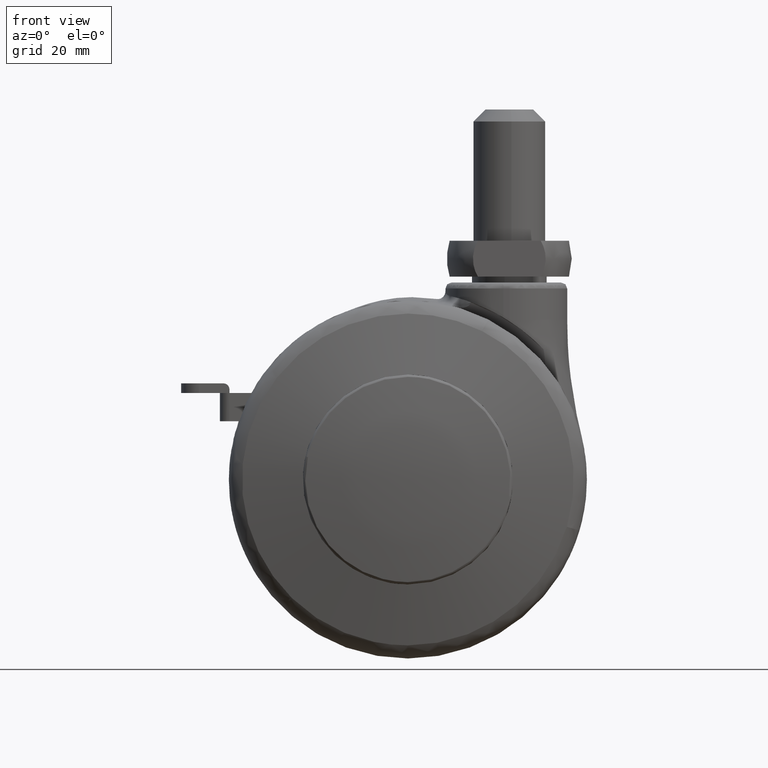
[diagram: clean part render]
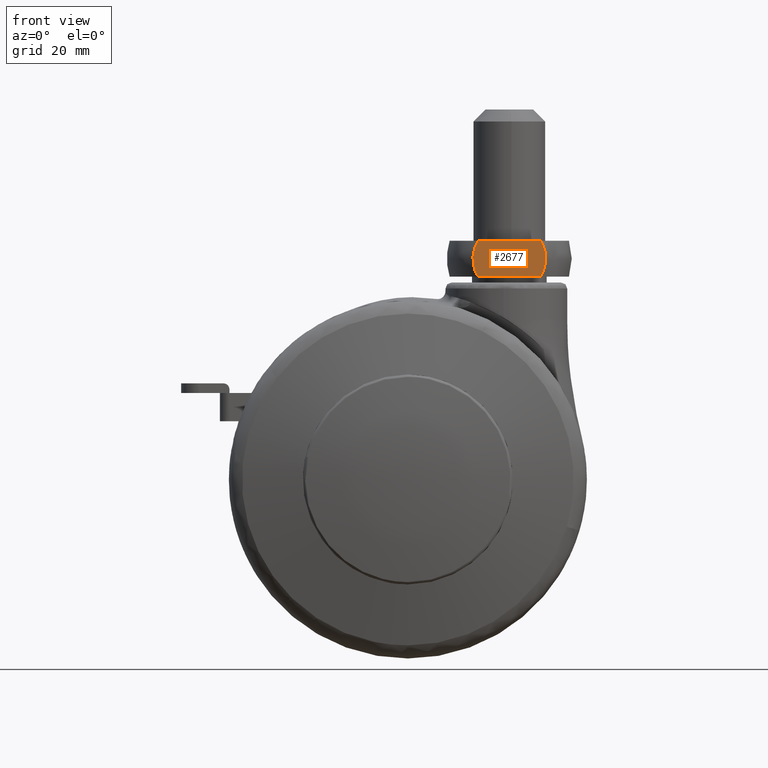
[diagram: same view with one face highlighted and labeled with its STEP entity id]
A machine part, front view. The second image highlights one B-rep face of the part: STEP entity #2677.
In plain terms, the highlighted face is a freeform B-spline surface patch.
Its self-contained STEP definition (entity closure, byte-faithful):
#2427=CARTESIAN_POINT('',(11.732173084377919,-8.500000000000000,40.0));
#2428=VERTEX_POINT('',#2427);
#2459=CARTESIAN_POINT('',(11.732173096675339,-8.500000000000000,34.0));
#2460=VERTEX_POINT('',#2459);
#2474=CARTESIAN_POINT('',(11.732173084377919,-8.500000000000000,40.0));
#2475=CARTESIAN_POINT('',(11.598142456138740,-8.500000000000000,39.775494250011100));
#2476=CARTESIAN_POINT('',(11.480420853642300,-8.500000000000002,39.544563033315512));
#2477=CARTESIAN_POINT('',(11.275192295875810,-8.500000000000000,39.067166780951112));
#2478=CARTESIAN_POINT('',(11.188102753278351,-8.499999999999998,38.820537292224827));
#2479=CARTESIAN_POINT('',(11.082213887308409,-8.500000000000000,38.440843799382492));
#2480=CARTESIAN_POINT('',(11.051054951752290,-8.499999999999996,38.312649259338457));
#2481=CARTESIAN_POINT('',(10.997259504024891,-8.500000000000000,38.052902498292298));
#2482=CARTESIAN_POINT('',(10.974864161588780,-8.499999999999996,37.922501337758113));
#2483=CARTESIAN_POINT('',(10.921072701193109,-8.499999999999998,37.530032942629852));
#2484=CARTESIAN_POINT('',(10.902983536434240,-8.499999999999998,37.266574274467693));
#2485=CARTESIAN_POINT('',(10.902867370452199,-8.500000000000000,36.735977893523760));
#2486=CARTESIAN_POINT('',(10.920836844630470,-8.499999999999996,36.473809108610951));
#2487=CARTESIAN_POINT('',(10.991313828847790,-8.500000000000000,35.955409715478091));
#2488=CARTESIAN_POINT('',(11.043826554054389,-8.499999999999995,35.699189801637509));
#2489=CARTESIAN_POINT('',(11.148776814293701,-8.500000000000002,35.319376149044217));
#2490=CARTESIAN_POINT('',(11.188137771805270,-8.499999999999998,35.193526717689132));
#2491=CARTESIAN_POINT('',(11.275838612908951,-8.500000000000002,34.943376708041178));
#2492=CARTESIAN_POINT('',(11.323797896967580,-8.499999999999998,34.820197466476259));
#2493=CARTESIAN_POINT('',(11.479116266427400,-8.499999999999996,34.457648559128252));
#2494=CARTESIAN_POINT('',(11.598092407606700,-8.499999999999998,34.224593493215053));
#2495=CARTESIAN_POINT('',(11.732173096675350,-8.499999999999998,34.0));
#2496=B_SPLINE_CURVE_WITH_KNOTS('',3,(#2474,#2475,#2476,#2477,#2478,#2479,#2480,#2481,#2482,#2483,#2484,#2485,#2486,#2487,#2488,#2489,#2490,#2491,#2492,#2493,#2494,#2495),.UNSPECIFIED.,.F.,.U.,(4,2,2,2,2,2,2,2,2,2,4),(0.750403753690250,0.781250000000012,0.812500000000010,0.828125000000009,0.843750000000008,0.875000000000006,0.906250000000004,0.937500000000003,0.953125000000002,0.968750000000002,1.0),.UNSPECIFIED.);
#2497=EDGE_CURVE('',#2428,#2460,#2496,.T.);
#2628=CARTESIAN_POINT('',(10.293827733436469,-8.500000000000000,33.700300011629160));
#2629=CARTESIAN_POINT('',(23.706171832472410,-8.500000000000000,33.700300011629160));
#2630=CARTESIAN_POINT('',(10.293827733436469,-8.500000000000000,40.299700149303384));
#2631=CARTESIAN_POINT('',(23.706171832472410,-8.500000000000000,40.299700149303384));
#2632=B_SPLINE_SURFACE_WITH_KNOTS('',1,1,((#2628,#2630),(#2629,#2631)),.UNSPECIFIED.,.F.,.F.,.U.,(2,2),(2,2),(0.0,13.412344099035939),(0.0,6.599400137674216),.UNSPECIFIED.);
#2633=CARTESIAN_POINT('',(22.267826903324650,-8.500000000000000,34.0));
#2634=VERTEX_POINT('',#2633);
#2635=CARTESIAN_POINT('',(22.267826915622098,-8.500000000000000,39.999999979401053));
#2636=VERTEX_POINT('',#2635);
#2637=CARTESIAN_POINT('',(22.267826903324661,-8.499999999999996,33.999999999999993));
#2638=CARTESIAN_POINT('',(22.334983241168750,-8.500000000000000,34.112491042615503));
#2639=CARTESIAN_POINT('',(22.398567388449269,-8.499999999999996,34.227495553251870));
#2640=CARTESIAN_POINT('',(22.518411288828961,-8.499999999999998,34.462658171517752));
#2641=CARTESIAN_POINT('',(22.574777453791729,-8.499999999999995,34.583139904142627));
#2642=CARTESIAN_POINT('',(22.730261735484831,-8.499999999999995,34.947023042857779));
#2643=CARTESIAN_POINT('',(22.816694363230699,-8.499999999999996,35.194356753575683));
#2644=CARTESIAN_POINT('',(22.955909452838160,-8.499999999999995,35.698294523716029));
#2645=CARTESIAN_POINT('',(23.008693105005431,-8.499999999999995,35.954898255218893));
#2646=CARTESIAN_POINT('',(23.061879759538780,-8.499999999999995,36.346963563337987));
#2647=CARTESIAN_POINT('',(23.075271971507640,-8.499999999999996,36.479305299721339));
#2648=CARTESIAN_POINT('',(23.092890961339020,-8.499999999999996,36.742746714432641));
#2649=CARTESIAN_POINT('',(23.097189781211920,-8.499999999999996,36.874143072982463));
#2650=CARTESIAN_POINT('',(23.096837478866561,-8.499999999999995,37.267379470799582));
#2651=CARTESIAN_POINT('',(23.078994585671321,-8.499999999999998,37.528270930281671));
#2652=CARTESIAN_POINT('',(23.025877321016988,-8.499999999999995,37.917713161515522));
#2653=CARTESIAN_POINT('',(23.003765123912402,-8.499999999999998,38.047210384850210));
#2654=CARTESIAN_POINT('',(22.950560278992700,-8.499999999999995,38.305559074856468));
#2655=CARTESIAN_POINT('',(22.919325779412421,-8.499999999999995,38.434846171128960));
#2656=CARTESIAN_POINT('',(22.813286985125600,-8.499999999999993,38.816478002368143));
#2657=CARTESIAN_POINT('',(22.726099055095649,-8.499999999999995,39.063754872715407));
#2658=CARTESIAN_POINT('',(22.520443690658020,-8.499999999999995,39.542951827812232));
#2659=CARTESIAN_POINT('',(22.402176173561511,-8.499999999999995,39.774958499082473));
#2660=CARTESIAN_POINT('',(22.267826915622098,-8.500000000000000,39.999999979401053));
#2661=B_SPLINE_CURVE_WITH_KNOTS('',3,(#2637,#2638,#2639,#2640,#2641,#2642,#2643,#2644,#2645,#2646,#2647,#2648,#2649,#2650,#2651,#2652,#2653,#2654,#2655,#2656,#2657,#2658,#2659,#2660),.UNSPECIFIED.,.F.,.U.,(4,2,2,2,2,2,2,2,2,2,2,4),(0.0,0.015625000000001,0.031250000000001,0.062500000000004,0.093750000000006,0.109375000000007,0.125000000000008,0.156250000000011,0.171875000000013,0.187500000000014,0.218750000000016,0.249801642570325),.UNSPECIFIED.);
#2662=EDGE_CURVE('',#2634,#2636,#2661,.T.);
#2663=ORIENTED_EDGE('',*,*,#2662,.T.);
#2664=CARTESIAN_POINT('',(11.732173084377919,-8.500000000000000,40.0));
#2665=CARTESIAN_POINT('',(22.267826915622098,-8.500000000000000,39.999999979401053));
#2666=QUASI_UNIFORM_CURVE('',1,(#2664,#2665),.UNSPECIFIED.,.F.,.U.);
#2667=EDGE_CURVE('',#2428,#2636,#2666,.T.);
#2668=ORIENTED_EDGE('',*,*,#2667,.F.);
#2669=ORIENTED_EDGE('',*,*,#2497,.T.);
#2670=CARTESIAN_POINT('',(11.732173096675339,-8.500000000000000,34.0));
#2671=CARTESIAN_POINT('',(22.267826903324650,-8.500000000000000,34.0));
#2672=QUASI_UNIFORM_CURVE('',1,(#2670,#2671),.UNSPECIFIED.,.F.,.U.);
#2673=EDGE_CURVE('',#2460,#2634,#2672,.T.);
#2674=ORIENTED_EDGE('',*,*,#2673,.T.);
#2675=EDGE_LOOP('',(#2663,#2668,#2669,#2674));
#2676=FACE_OUTER_BOUND('',#2675,.T.);
#2677=ADVANCED_FACE('',(#2676),#2632,.T.);